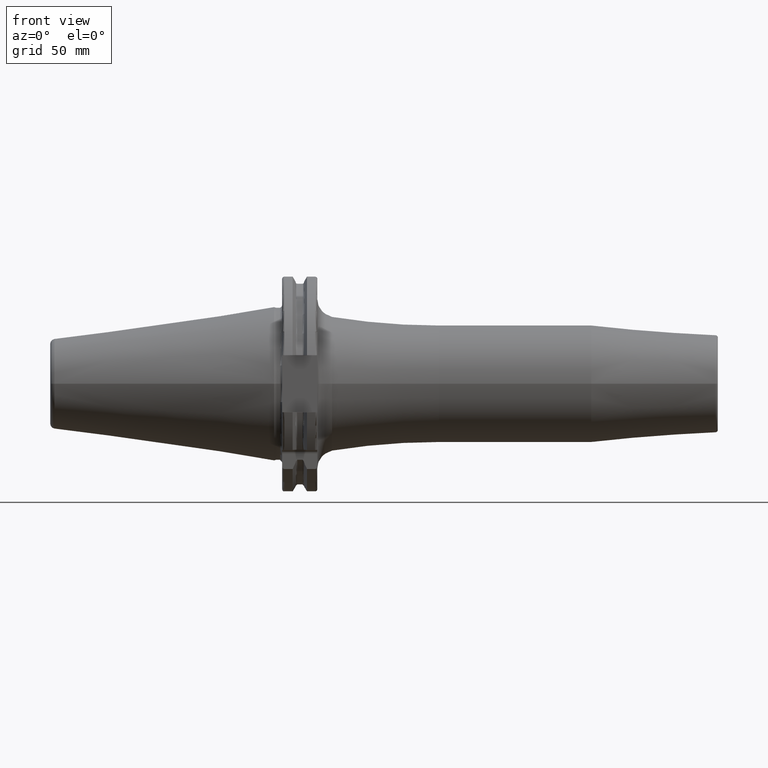
[diagram: clean part render]
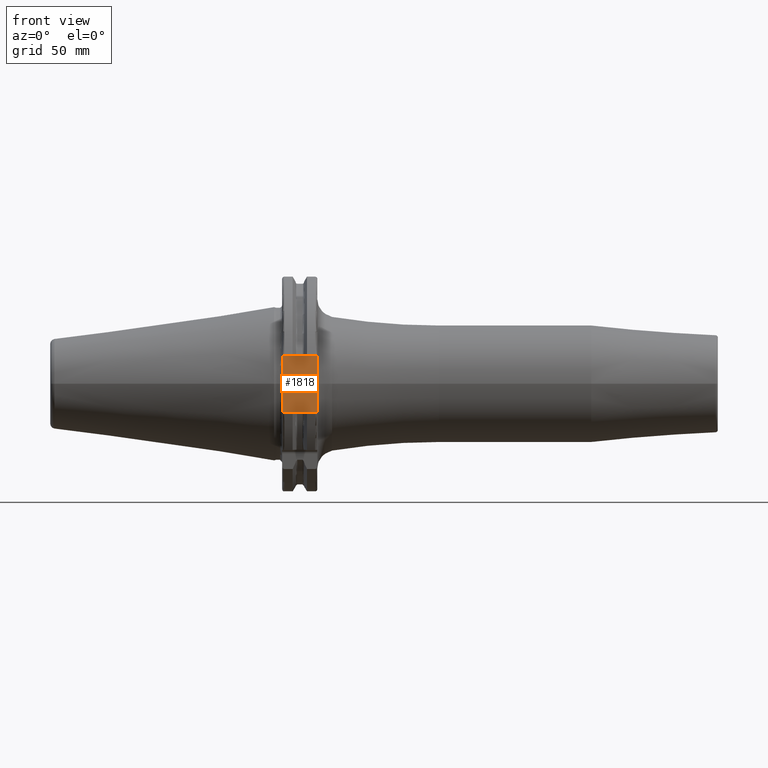
[diagram: same view with one face highlighted and labeled with its STEP entity id]
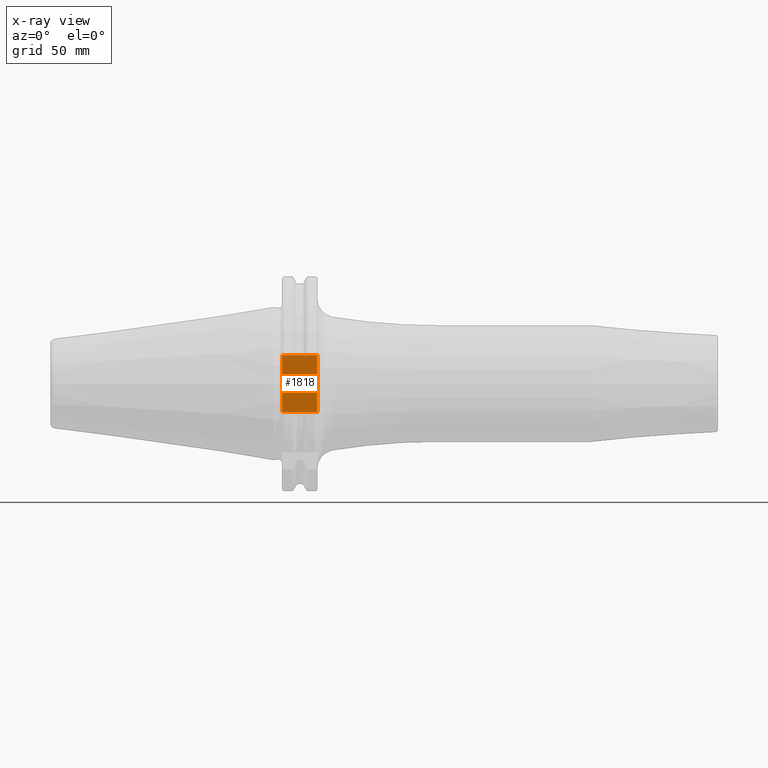
[diagram: x-ray of the same camera — body ghosted, the highlighted face saturated]
A machine part, front view. The second image highlights one B-rep face of the part: STEP entity #1818.
The next image is the same camera in x-ray: the body ghosted, the highlighted face saturated — about 0% of this face is hidden behind the body in this view.
In plain terms, the highlighted planar face has unit normal (0, 1, 0).
Its self-contained STEP definition (entity closure, byte-faithful):
#151=DIRECTION('',(0.E0,6.584958678012E-6,9.999999999783E-1));
#152=VECTOR('',#151,5.076666840961E0);
#153=CARTESIAN_POINT('',(1.905E1,-3.75E1,-1.29E1));
#154=LINE('',#153,#152);
#160=DIRECTION('',(0.E0,-6.316871095685E-6,9.999999999800E-1));
#161=VECTOR('',#160,5.076450794014E0);
#162=CARTESIAN_POINT('',(1.905E1,-3.749996793271E1,7.823549206088E0));
#163=LINE('',#162,#161);
#172=CARTESIAN_POINT('',(1.909084325201E1,-3.75E1,-5.248465002403E-4));
#173=CARTESIAN_POINT('',(1.909084201537E1,-3.75E1,-8.715717197941E-1));
#174=CARTESIAN_POINT('',(1.908432836254E1,-3.749999554271E1,-2.612489256955E0));
#175=CARTESIAN_POINT('',(1.906146657810E1,-3.750001560050E1,-5.224571167688E0));
#176=CARTESIAN_POINT('',(1.905E1,-3.749996657036E1,-6.957976495416E0));
#177=CARTESIAN_POINT('',(1.905E1,-3.749996657036E1,-7.823333159149E0));
#199=DIRECTION('',(-1.E0,0.E0,0.E0));
#200=VECTOR('',#199,1.585E1);
#201=CARTESIAN_POINT('',(1.905E1,-3.75E1,-1.29E1));
#202=LINE('',#201,#200);
#203=CARTESIAN_POINT('',(1.905E1,-3.749996793271E1,7.823549206088E0));
#204=CARTESIAN_POINT('',(1.905E1,-3.749996793271E1,6.958067766689E0));
#205=CARTESIAN_POINT('',(1.906146977762E1,-3.750001496473E1,5.224101569802E0));
#206=CARTESIAN_POINT('',(1.908433398583E1,-3.749999572436E1,2.611809137307E0));
#207=CARTESIAN_POINT('',(1.909084448880E1,-3.75E1,8.706347915606E-1));
#208=CARTESIAN_POINT('',(1.909084325201E1,-3.75E1,-5.248465002403E-4));
#371=DIRECTION('',(-1.E0,0.E0,0.E0));
#372=VECTOR('',#371,1.585E1);
#373=CARTESIAN_POINT('',(1.905E1,-3.75E1,1.29E1));
#374=LINE('',#373,#372);
#649=DIRECTION('',(0.E0,0.E0,1.E0));
#650=VECTOR('',#649,2.58E1);
#651=CARTESIAN_POINT('',(3.2E0,-3.75E1,-1.29E1));
#652=LINE('',#651,#650);
#1393=CARTESIAN_POINT('',(1.905E1,-3.75E1,-1.29E1));
#1395=VERTEX_POINT('',#1393);
#1397=CARTESIAN_POINT('',(1.905E1,-3.75E1,1.29E1));
#1399=VERTEX_POINT('',#1397);
#1421=CARTESIAN_POINT('',(3.2E0,-3.75E1,-1.29E1));
#1423=VERTEX_POINT('',#1421);
#1424=CARTESIAN_POINT('',(3.2E0,-3.75E1,1.29E1));
#1425=VERTEX_POINT('',#1424);
#1517=CARTESIAN_POINT('',(1.905E1,-3.750005736416E1,-7.822993595848E0));
#1519=VERTEX_POINT('',#1517);
#1526=CARTESIAN_POINT('',(1.905E1,-3.749992387111E1,7.823633476638E0));
#1528=VERTEX_POINT('',#1526);
#1529=CARTESIAN_POINT('',(1.909084325201E1,-3.75E1,-5.248465002374E-4));
#1530=VERTEX_POINT('',#1529);
#1800=CARTESIAN_POINT('',(1.905E1,-3.75E1,-1.29E1));
#1801=DIRECTION('',(0.E0,1.E0,0.E0));
#1802=DIRECTION('',(0.E0,0.E0,1.E0));
#1803=AXIS2_PLACEMENT_3D('',#1800,#1801,#1802);
#1804=PLANE('',#1803);
#1805=ORIENTED_EDGE('',*,*,#1770,.F.);
#1807=ORIENTED_EDGE('',*,*,#1806,.T.);
#1808=ORIENTED_EDGE('',*,*,#1787,.T.);
#1809=ORIENTED_EDGE('',*,*,#1758,.F.);
#1811=ORIENTED_EDGE('',*,*,#1810,.T.);
#1813=ORIENTED_EDGE('',*,*,#1812,.T.);
#1815=ORIENTED_EDGE('',*,*,#1814,.F.);
#1816=EDGE_LOOP('',(#1805,#1807,#1808,#1809,#1811,#1813,#1815));
#1817=FACE_OUTER_BOUND('',#1816,.F.);
#1818=ADVANCED_FACE('',(#1817),#1804,.F.);
#178=B_SPLINE_CURVE_WITH_KNOTS('',3,(#172,#173,#174,#175,#176,#177),
.UNSPECIFIED.,.F.,.F.,(4,1,1,4),(0.E0,3.333333333333E-1,6.666666666667E-1,1.E0),
.UNSPECIFIED.);
#209=B_SPLINE_CURVE_WITH_KNOTS('',3,(#203,#204,#205,#206,#207,#208),
.UNSPECIFIED.,.F.,.F.,(4,1,1,4),(0.E0,3.333333333333E-1,6.666666666667E-1,1.E0),
.UNSPECIFIED.);
#1758=EDGE_CURVE('',#1395,#1519,#154,.T.);
#1770=EDGE_CURVE('',#1528,#1399,#163,.T.);
#1787=EDGE_CURVE('',#1530,#1519,#178,.T.);
#1806=EDGE_CURVE('',#1528,#1530,#209,.T.);
#1810=EDGE_CURVE('',#1395,#1423,#202,.T.);
#1812=EDGE_CURVE('',#1423,#1425,#652,.T.);
#1814=EDGE_CURVE('',#1399,#1425,#374,.T.);